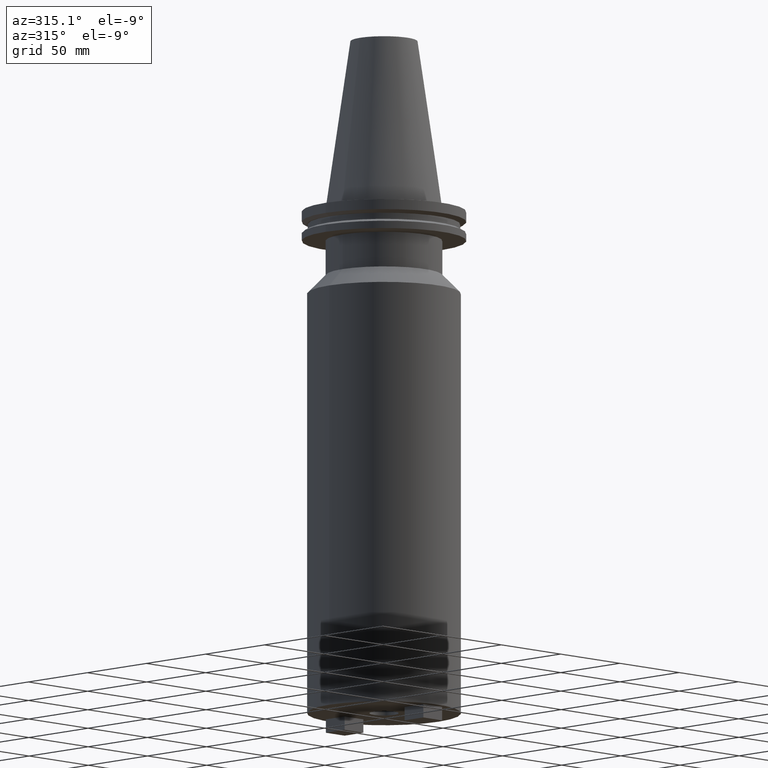
[diagram: clean part render]
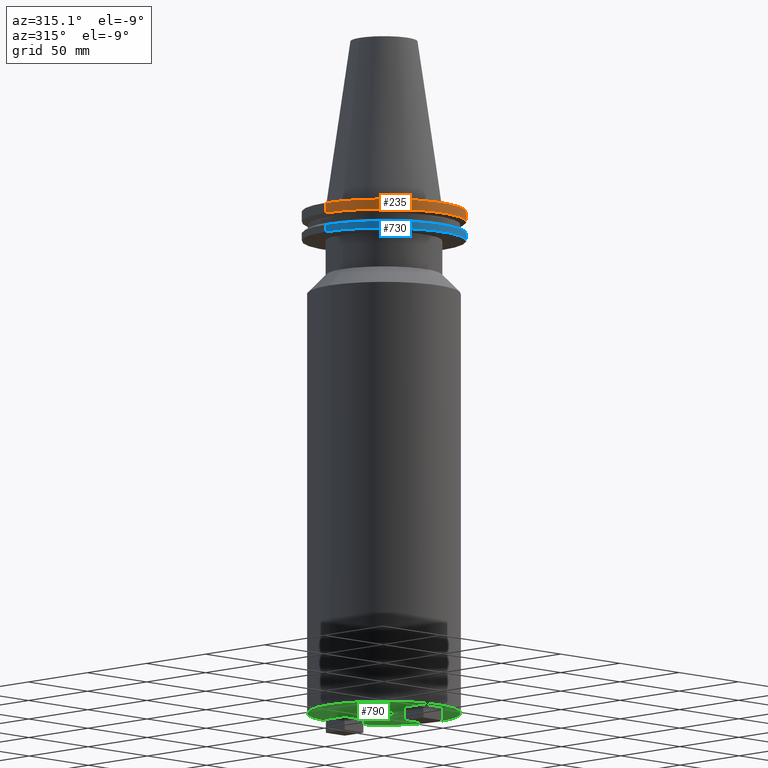
[diagram: same view with three faces highlighted in distinct colors, each labeled with its STEP entity id]
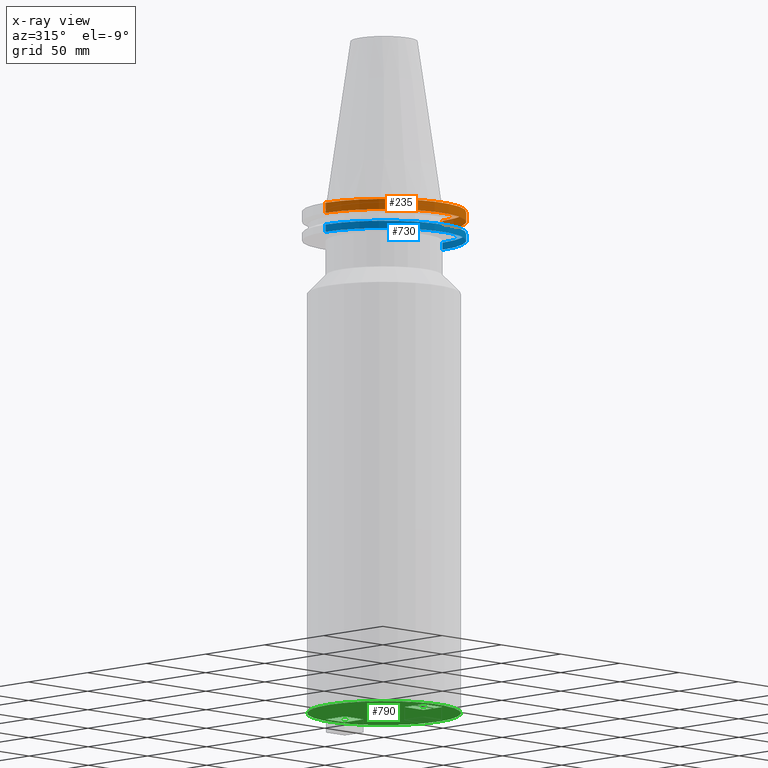
[diagram: x-ray of the same camera — body ghosted, the three highlighted faces saturated]
A machine part, auxiliary view with three faces highlighted in distinct colors.
The next image is the same camera in x-ray (body ghosted, the three faces saturated) — at least one of them is partly hidden behind the body in this view.
Their STEP definitions:

[orange] entity #235 — the highlighted cylindrical surface (partial cylindrical patch) has radius 49.215 mm, axis along (-0, -0, 1).
#56 = LINE ( 'NONE', #662, #616 ) ;
#59 = CARTESIAN_POINT ( 'NONE',  ( -49.21499999999999631, 6.027099222003697826E-15, -1.499999999999987566 ) ) ;
#98 = CARTESIAN_POINT ( 'NONE',  ( 0.000000000000000000, 0.000000000000000000, -1.499999999999987566 ) ) ;
#112 = DIRECTION ( 'NONE',  ( 1.000000000000000000, 0.000000000000000000, 0.000000000000000000 ) ) ;
#186 = EDGE_CURVE ( 'NONE', #656, #927, #202, .T. ) ;
#194 = ORIENTED_EDGE ( 'NONE', *, *, #800, .T. ) ;
#202 = CIRCLE ( 'NONE', #978, 49.21499999999999631 ) ;
#234 = ORIENTED_EDGE ( 'NONE', *, *, #186, .F. ) ;
#235 = ADVANCED_FACE ( 'NONE', ( #275 ), #706, .T. ) ;
#275 = FACE_OUTER_BOUND ( 'NONE', #485, .T. ) ;
#361 = EDGE_CURVE ( 'NONE', #441, #927, #56, .T. ) ;
#376 = CARTESIAN_POINT ( 'NONE',  ( -49.21500000000000341, 6.027099222003699404E-15, -7.602389855251287187 ) ) ;
#383 = LINE ( 'NONE', #638, #623 ) ;
#394 = AXIS2_PLACEMENT_3D ( 'NONE', #535, #1036, #112 ) ;
#412 = DIRECTION ( 'NONE',  ( -0.000000000000000000, -0.000000000000000000, 1.000000000000000000 ) ) ;
#430 = ORIENTED_EDGE ( 'NONE', *, *, #1108, .F. ) ;
#435 = CARTESIAN_POINT ( 'NONE',  ( 49.21499999999999631, 0.000000000000000000, -1.499999999999987566 ) ) ;
#441 = VERTEX_POINT ( 'NONE', #1018 ) ;
#469 = DIRECTION ( 'NONE',  ( -0.000000000000000000, -0.000000000000000000, 1.000000000000000000 ) ) ;
#485 = EDGE_LOOP ( 'NONE', ( #430, #194, #1072, #234 ) ) ;
#535 = CARTESIAN_POINT ( 'NONE',  ( 0.000000000000000000, 0.000000000000000000, 101.5999999999999943 ) ) ;
#613 = DIRECTION ( 'NONE',  ( -0.000000000000000000, -0.000000000000000000, 1.000000000000000000 ) ) ;
#616 = VECTOR ( 'NONE', #412, 1000.000000000000000 ) ;
#623 = VECTOR ( 'NONE', #469, 1000.000000000000000 ) ;
#638 = CARTESIAN_POINT ( 'NONE',  ( -49.21499999999999631, 6.027099222003697826E-15, 101.5999999999999943 ) ) ;
#656 = VERTEX_POINT ( 'NONE', #59 ) ;
#662 = CARTESIAN_POINT ( 'NONE',  ( 49.21499999999999631, 0.000000000000000000, 101.5999999999999943 ) ) ;
#706 = CYLINDRICAL_SURFACE ( 'NONE', #394, 49.21499999999999631 ) ;
#800 = EDGE_CURVE ( 'NONE', #1020, #441, #869, .T. ) ;
#866 = DIRECTION ( 'NONE',  ( 1.000000000000000000, 0.000000000000000000, 0.000000000000000000 ) ) ;
#869 = CIRCLE ( 'NONE', #1014, 49.21500000000000341 ) ;
#877 = DIRECTION ( 'NONE',  ( -0.000000000000000000, -0.000000000000000000, 1.000000000000000000 ) ) ;
#927 = VERTEX_POINT ( 'NONE', #435 ) ;
#978 = AXIS2_PLACEMENT_3D ( 'NONE', #98, #877, #866 ) ;
#1014 = AXIS2_PLACEMENT_3D ( 'NONE', #1035, #613, #1106 ) ;
#1018 = CARTESIAN_POINT ( 'NONE',  ( 49.21500000000000341, 0.000000000000000000, -7.602389855251287187 ) ) ;
#1020 = VERTEX_POINT ( 'NONE', #376 ) ;
#1035 = CARTESIAN_POINT ( 'NONE',  ( 0.000000000000000000, 0.000000000000000000, -7.602389855251287187 ) ) ;
#1036 = DIRECTION ( 'NONE',  ( -0.000000000000000000, -0.000000000000000000, 1.000000000000000000 ) ) ;
#1072 = ORIENTED_EDGE ( 'NONE', *, *, #361, .T. ) ;
#1106 = DIRECTION ( 'NONE',  ( 1.000000000000000000, 0.000000000000000000, 0.000000000000000000 ) ) ;
#1108 = EDGE_CURVE ( 'NONE', #1020, #656, #383, .T. ) ;

[blue] entity #730 — the highlighted cylindrical surface (partial cylindrical patch) has radius 49.215 mm, axis along (-0, -0, 1).
#24 = DIRECTION ( 'NONE',  ( -0.000000000000000000, -0.000000000000000000, 1.000000000000000000 ) ) ;
#46 = DIRECTION ( 'NONE',  ( 1.000000000000000000, 0.000000000000000000, 0.000000000000000000 ) ) ;
#92 = CARTESIAN_POINT ( 'NONE',  ( 49.21499999999998920, 0.000000000000000000, -14.65761014474876944 ) ) ;
#103 = ORIENTED_EDGE ( 'NONE', *, *, #130, .T. ) ;
#115 = DIRECTION ( 'NONE',  ( -0.000000000000000000, -0.000000000000000000, 1.000000000000000000 ) ) ;
#130 = EDGE_CURVE ( 'NONE', #686, #466, #300, .T. ) ;
#145 = VECTOR ( 'NONE', #24, 1000.000000000000000 ) ;
#157 = ORIENTED_EDGE ( 'NONE', *, *, #213, .T. ) ;
#163 = CARTESIAN_POINT ( 'NONE',  ( 0.000000000000000000, 0.000000000000000000, 101.5999999999999943 ) ) ;
#172 = CYLINDRICAL_SURFACE ( 'NONE', #998, 49.21499999999998920 ) ;
#185 = CARTESIAN_POINT ( 'NONE',  ( -49.21499999999998920, 6.027099222003697037E-15, -14.65761014474876944 ) ) ;
#193 = LINE ( 'NONE', #267, #145 ) ;
#196 = CARTESIAN_POINT ( 'NONE',  ( 0.000000000000000000, 0.000000000000000000, -19.04999999999999716 ) ) ;
#210 = ORIENTED_EDGE ( 'NONE', *, *, #689, .F. ) ;
#213 = EDGE_CURVE ( 'NONE', #466, #892, #193, .T. ) ;
#223 = ORIENTED_EDGE ( 'NONE', *, *, #1090, .F. ) ;
#232 = AXIS2_PLACEMENT_3D ( 'NONE', #196, #962, #695 ) ;
#246 = CARTESIAN_POINT ( 'NONE',  ( 49.21499999999998920, 0.000000000000000000, -19.04999999999999716 ) ) ;
#267 = CARTESIAN_POINT ( 'NONE',  ( 49.21499999999998920, 0.000000000000000000, 101.5999999999999943 ) ) ;
#300 = CIRCLE ( 'NONE', #232, 49.21499999999998920 ) ;
#303 = LINE ( 'NONE', #464, #817 ) ;
#353 = AXIS2_PLACEMENT_3D ( 'NONE', #906, #928, #46 ) ;
#461 = VERTEX_POINT ( 'NONE', #185 ) ;
#464 = CARTESIAN_POINT ( 'NONE',  ( -49.21499999999998920, 6.027099222003697037E-15, 101.5999999999999943 ) ) ;
#466 = VERTEX_POINT ( 'NONE', #246 ) ;
#499 = EDGE_LOOP ( 'NONE', ( #223, #103, #157, #210 ) ) ;
#514 = DIRECTION ( 'NONE',  ( -0.000000000000000000, -0.000000000000000000, 1.000000000000000000 ) ) ;
#657 = CARTESIAN_POINT ( 'NONE',  ( -49.21499999999998920, 6.027099222003697037E-15, -19.04999999999999716 ) ) ;
#686 = VERTEX_POINT ( 'NONE', #657 ) ;
#687 = DIRECTION ( 'NONE',  ( 1.000000000000000000, 0.000000000000000000, 0.000000000000000000 ) ) ;
#689 = EDGE_CURVE ( 'NONE', #461, #892, #1033, .T. ) ;
#695 = DIRECTION ( 'NONE',  ( 1.000000000000000000, 0.000000000000000000, 0.000000000000000000 ) ) ;
#730 = ADVANCED_FACE ( 'NONE', ( #1101 ), #172, .T. ) ;
#817 = VECTOR ( 'NONE', #115, 1000.000000000000000 ) ;
#892 = VERTEX_POINT ( 'NONE', #92 ) ;
#906 = CARTESIAN_POINT ( 'NONE',  ( 0.000000000000000000, 0.000000000000000000, -14.65761014474876944 ) ) ;
#928 = DIRECTION ( 'NONE',  ( -0.000000000000000000, -0.000000000000000000, 1.000000000000000000 ) ) ;
#962 = DIRECTION ( 'NONE',  ( -0.000000000000000000, -0.000000000000000000, 1.000000000000000000 ) ) ;
#998 = AXIS2_PLACEMENT_3D ( 'NONE', #163, #514, #687 ) ;
#1033 = CIRCLE ( 'NONE', #353, 49.21499999999998920 ) ;
#1090 = EDGE_CURVE ( 'NONE', #686, #461, #303, .T. ) ;
#1101 = FACE_OUTER_BOUND ( 'NONE', #499, .T. ) ;

[green] entity #790 — the highlighted planar face has unit normal (0, -0, 1).
#4 = LINE ( 'NONE', #669, #239 ) ;
#5 = VECTOR ( 'NONE', #179, 1000.000000000000000 ) ;
#10 = VECTOR ( 'NONE', #201, 1000.000000000000000 ) ;
#52 = CARTESIAN_POINT ( 'NONE',  ( 7.939999999999990621, -41.28000000000000114, -304.8000000000000682 ) ) ;
#58 = VERTEX_POINT ( 'NONE', #932 ) ;
#71 = ORIENTED_EDGE ( 'NONE', *, *, #771, .F. ) ;
#94 = CARTESIAN_POINT ( 'NONE',  ( 0.000000000000000000, 0.000000000000000000, -304.8000000000000114 ) ) ;
#100 = AXIS2_PLACEMENT_3D ( 'NONE', #765, #176, #271 ) ;
#123 = VERTEX_POINT ( 'NONE', #463 ) ;
#127 = DIRECTION ( 'NONE',  ( -0.000000000000000000, -0.000000000000000000, 1.000000000000000000 ) ) ;
#148 = EDGE_CURVE ( 'NONE', #367, #987, #354, .T. ) ;
#162 = EDGE_LOOP ( 'NONE', ( #71, #236 ) ) ;
#176 = DIRECTION ( 'NONE',  ( 0.000000000000000000, -0.000000000000000000, 1.000000000000000000 ) ) ;
#179 = DIRECTION ( 'NONE',  ( -1.000000000000000000, 0.000000000000000000, 0.000000000000000000 ) ) ;
#189 = CIRCLE ( 'NONE', #845, 46.04999999999999716 ) ;
#192 = EDGE_CURVE ( 'NONE', #987, #317, #789, .T. ) ;
#201 = DIRECTION ( 'NONE',  ( 0.000000000000000000, 1.000000000000000000, 0.000000000000000000 ) ) ;
#225 = CARTESIAN_POINT ( 'NONE',  ( 7.939999999999987068, 41.27999999999999403, -304.8000000000000682 ) ) ;
#228 = EDGE_CURVE ( 'NONE', #708, #530, #373, .T. ) ;
#236 = ORIENTED_EDGE ( 'NONE', *, *, #1075, .F. ) ;
#239 = VECTOR ( 'NONE', #346, 1000.000000000000000 ) ;
#250 = LINE ( 'NONE', #1017, #515 ) ;
#271 = DIRECTION ( 'NONE',  ( 1.000000000000000000, 0.000000000000000000, 0.000000000000000000 ) ) ;
#313 = ORIENTED_EDGE ( 'NONE', *, *, #379, .T. ) ;
#317 = VERTEX_POINT ( 'NONE', #325 ) ;
#325 = CARTESIAN_POINT ( 'NONE',  ( -7.940000000000009273, 25.39999999999998792, -304.8000000000000682 ) ) ;
#335 = PLANE ( 'NONE',  #100 ) ;
#345 = ORIENTED_EDGE ( 'NONE', *, *, #726, .F. ) ;
#346 = DIRECTION ( 'NONE',  ( -1.000000000000000000, -4.369580544022185705E-16, 0.000000000000000000 ) ) ;
#349 = DIRECTION ( 'NONE',  ( -1.000000000000000000, 4.369580544022182747E-16, 0.000000000000000000 ) ) ;
#352 = CARTESIAN_POINT ( 'NONE',  ( -7.940000000000007496, 41.27999999999998693, -304.8000000000000682 ) ) ;
#354 = LINE ( 'NONE', #381, #864 ) ;
#360 = DIRECTION ( 'NONE',  ( 2.184790272011092360E-16, 1.000000000000000000, 0.000000000000000000 ) ) ;
#367 = VERTEX_POINT ( 'NONE', #225 ) ;
#373 = LINE ( 'NONE', #609, #777 ) ;
#379 = EDGE_CURVE ( 'NONE', #58, #647, #976, .T. ) ;
#381 = CARTESIAN_POINT ( 'NONE',  ( 7.939999999999995950, 1.734723475976805714E-15, -304.8000000000000682 ) ) ;
#385 = CARTESIAN_POINT ( 'NONE',  ( -7.940000000000012825, 8.673617379884053221E-16, -304.8000000000000682 ) ) ;
#391 = LINE ( 'NONE', #724, #10 ) ;
#398 = CIRCLE ( 'NONE', #565, 46.04999999999999716 ) ;
#437 = FACE_BOUND ( 'NONE', #894, .T. ) ;
#442 = DIRECTION ( 'NONE',  ( -0.000000000000000000, -0.000000000000000000, 1.000000000000000000 ) ) ;
#446 = VERTEX_POINT ( 'NONE', #352 ) ;
#459 = CARTESIAN_POINT ( 'NONE',  ( 7.939999999999994174, -25.39999999999999147, -304.8000000000000682 ) ) ;
#463 = CARTESIAN_POINT ( 'NONE',  ( 46.04999999999999716, 0.000000000000000000, -304.8000000000000682 ) ) ;
#478 = EDGE_CURVE ( 'NONE', #446, #317, #815, .T. ) ;
#480 = VERTEX_POINT ( 'NONE', #715 ) ;
#515 = VECTOR ( 'NONE', #754, 1000.000000000000000 ) ;
#522 = CARTESIAN_POINT ( 'NONE',  ( -7.940000000000009273, -41.27999999999999403, -304.8000000000000682 ) ) ;
#525 = EDGE_CURVE ( 'NONE', #958, #1076, #391, .T. ) ;
#530 = VERTEX_POINT ( 'NONE', #459 ) ;
#539 = DIRECTION ( 'NONE',  ( 2.184790272011091620E-16, -1.000000000000000000, 0.000000000000000000 ) ) ;
#550 = DIRECTION ( 'NONE',  ( 1.000000000000000000, 0.000000000000000000, 0.000000000000000000 ) ) ;
#560 = CARTESIAN_POINT ( 'NONE',  ( -8.730000000000009308, 1.069116655655640360E-15, -304.8000000000000114 ) ) ;
#565 = AXIS2_PLACEMENT_3D ( 'NONE', #954, #693, #851 ) ;
#590 = FACE_BOUND ( 'NONE', #850, .T. ) ;
#594 = ORIENTED_EDGE ( 'NONE', *, *, #148, .F. ) ;
#609 = CARTESIAN_POINT ( 'NONE',  ( 7.939999999999999503, -1.734723475976807094E-15, -304.8000000000000682 ) ) ;
#621 = VECTOR ( 'NONE', #349, 1000.000000000000000 ) ;
#647 = VERTEX_POINT ( 'NONE', #560 ) ;
#668 = ORIENTED_EDGE ( 'NONE', *, *, #798, .T. ) ;
#669 = CARTESIAN_POINT ( 'NONE',  ( -1.803762848572357623E-14, 41.27999999999998693, -304.8000000000000682 ) ) ;
#673 = FACE_OUTER_BOUND ( 'NONE', #162, .T. ) ;
#693 = DIRECTION ( 'NONE',  ( -0.000000000000000000, -0.000000000000000000, 1.000000000000000000 ) ) ;
#708 = VERTEX_POINT ( 'NONE', #52 ) ;
#709 = DIRECTION ( 'NONE',  ( -1.092395136005546426E-16, -1.000000000000000000, 0.000000000000000000 ) ) ;
#715 = CARTESIAN_POINT ( 'NONE',  ( -46.04999999999999716, 5.639498510073560988E-15, -304.8000000000000682 ) ) ;
#719 = CARTESIAN_POINT ( 'NONE',  ( 0.000000000000000000, 0.000000000000000000, -304.8000000000000114 ) ) ;
#724 = CARTESIAN_POINT ( 'NONE',  ( -7.940000000000009273, 0.000000000000000000, -304.8000000000000682 ) ) ;
#726 = EDGE_CURVE ( 'NONE', #708, #958, #250, .T. ) ;
#729 = ORIENTED_EDGE ( 'NONE', *, *, #914, .T. ) ;
#749 = DIRECTION ( 'NONE',  ( -0.000000000000000000, -0.000000000000000000, 1.000000000000000000 ) ) ;
#754 = DIRECTION ( 'NONE',  ( -1.000000000000000000, 4.369580544022184719E-16, 0.000000000000000000 ) ) ;
#765 = CARTESIAN_POINT ( 'NONE',  ( 0.000000000000000000, 46.04999999999999716, -304.8000000000000682 ) ) ;
#771 = EDGE_CURVE ( 'NONE', #123, #480, #398, .T. ) ;
#774 = CARTESIAN_POINT ( 'NONE',  ( 0.000000000000000000, 25.39999999999998792, -304.8000000000000682 ) ) ;
#777 = VECTOR ( 'NONE', #360, 1000.000000000000000 ) ;
#783 = EDGE_CURVE ( 'NONE', #647, #58, #908, .T. ) ;
#789 = LINE ( 'NONE', #774, #5 ) ;
#790 = ADVANCED_FACE ( 'NONE', ( #590, #437, #673, #842 ), #335, .F. ) ;
#798 = EDGE_CURVE ( 'NONE', #367, #446, #4, .T. ) ;
#801 = AXIS2_PLACEMENT_3D ( 'NONE', #94, #442, #1021 ) ;
#815 = LINE ( 'NONE', #385, #1099 ) ;
#842 = FACE_BOUND ( 'NONE', #1064, .T. ) ;
#845 = AXIS2_PLACEMENT_3D ( 'NONE', #1057, #127, #550 ) ;
#847 = ORIENTED_EDGE ( 'NONE', *, *, #525, .F. ) ;
#848 = CARTESIAN_POINT ( 'NONE',  ( 7.939999999999990621, 25.39999999999998792, -304.8000000000000682 ) ) ;
#850 = EDGE_LOOP ( 'NONE', ( #1034, #729, #847, #345 ) ) ;
#851 = DIRECTION ( 'NONE',  ( 1.000000000000000000, 0.000000000000000000, 0.000000000000000000 ) ) ;
#855 = CARTESIAN_POINT ( 'NONE',  ( -1.109873458181633997E-14, -25.39999999999998792, -304.8000000000000682 ) ) ;
#864 = VECTOR ( 'NONE', #539, 1000.000000000000000 ) ;
#893 = CARTESIAN_POINT ( 'NONE',  ( -7.940000000000009273, -25.39999999999998437, -304.8000000000000682 ) ) ;
#894 = EDGE_LOOP ( 'NONE', ( #668, #970, #1097, #594 ) ) ;
#908 = CIRCLE ( 'NONE', #801, 8.730000000000009308 ) ;
#914 = EDGE_CURVE ( 'NONE', #530, #1076, #1024, .T. ) ;
#917 = AXIS2_PLACEMENT_3D ( 'NONE', #719, #749, #1061 ) ;
#932 = CARTESIAN_POINT ( 'NONE',  ( 8.730000000000009308, 0.000000000000000000, -304.8000000000000114 ) ) ;
#954 = CARTESIAN_POINT ( 'NONE',  ( 0.000000000000000000, 0.000000000000000000, -304.8000000000000682 ) ) ;
#958 = VERTEX_POINT ( 'NONE', #522 ) ;
#970 = ORIENTED_EDGE ( 'NONE', *, *, #478, .T. ) ;
#976 = CIRCLE ( 'NONE', #917, 8.730000000000009308 ) ;
#987 = VERTEX_POINT ( 'NONE', #848 ) ;
#1017 = CARTESIAN_POINT ( 'NONE',  ( -1.803762848572357308E-14, -41.27999999999998693, -304.8000000000000682 ) ) ;
#1019 = ORIENTED_EDGE ( 'NONE', *, *, #783, .T. ) ;
#1021 = DIRECTION ( 'NONE',  ( 1.000000000000000000, 0.000000000000000000, 0.000000000000000000 ) ) ;
#1024 = LINE ( 'NONE', #855, #621 ) ;
#1034 = ORIENTED_EDGE ( 'NONE', *, *, #228, .T. ) ;
#1057 = CARTESIAN_POINT ( 'NONE',  ( 0.000000000000000000, 0.000000000000000000, -304.8000000000000682 ) ) ;
#1061 = DIRECTION ( 'NONE',  ( 1.000000000000000000, 0.000000000000000000, 0.000000000000000000 ) ) ;
#1064 = EDGE_LOOP ( 'NONE', ( #313, #1019 ) ) ;
#1075 = EDGE_CURVE ( 'NONE', #480, #123, #189, .T. ) ;
#1076 = VERTEX_POINT ( 'NONE', #893 ) ;
#1097 = ORIENTED_EDGE ( 'NONE', *, *, #192, .F. ) ;
#1099 = VECTOR ( 'NONE', #709, 1000.000000000000000 ) ;